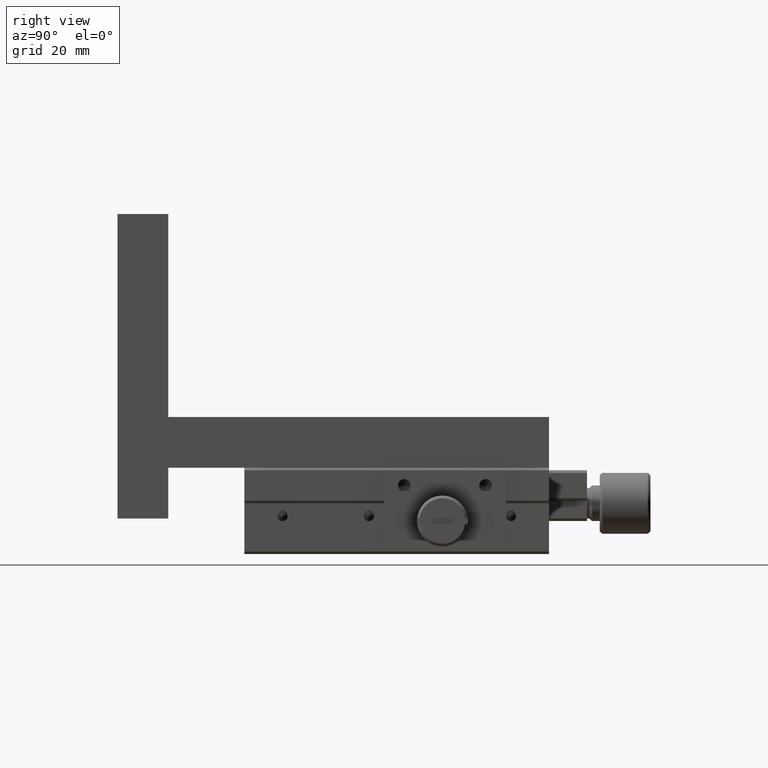
[diagram: clean part render]
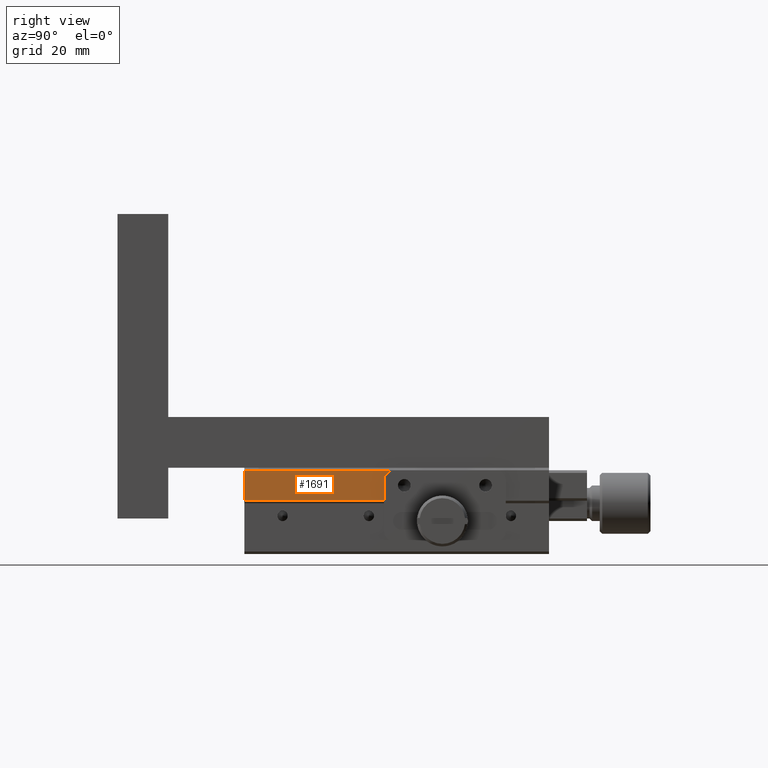
[diagram: same view with one face highlighted and labeled with its STEP entity id]
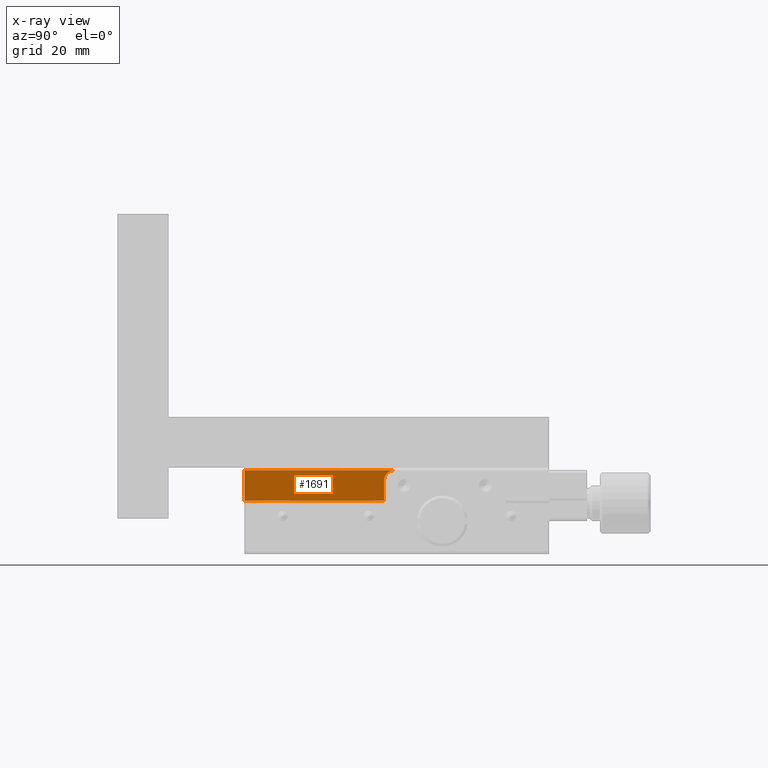
[diagram: x-ray of the same camera — body ghosted, the highlighted face saturated]
A machine part, right view. The second image highlights one B-rep face of the part: STEP entity #1691.
The next image is the same camera in x-ray: the body ghosted, the highlighted face saturated — about 0% of this face is hidden behind the body in this view.
In plain terms, the highlighted planar face has unit normal (-1, 0, 0).
Its self-contained STEP definition (entity closure, byte-faithful):
#13 = EDGE_CURVE ( 'NONE', #1312, #2173, #532, .T. ) ;
#23 = DIRECTION ( 'NONE',  ( -1.000000000000000000, 0.000000000000000000, 0.000000000000000000 ) ) ;
#272 = LINE ( 'NONE', #1961, #5075 ) ;
#382 = DIRECTION ( 'NONE',  ( -0.000000000000000000, -1.000000000000000000, 0.000000000000000000 ) ) ;
#526 = EDGE_CURVE ( 'NONE', #4373, #5697, #6319, .T. ) ;
#532 = CIRCLE ( 'NONE', #2661, 2.000000000000000000 ) ;
#622 = CARTESIAN_POINT ( 'NONE',  ( 30.00000000000000000, 54.50000000000000000, -0.5000000000000069944 ) ) ;
#924 = LINE ( 'NONE', #5399, #6091 ) ;
#962 = CARTESIAN_POINT ( 'NONE',  ( 30.00000000000000000, 54.50000000000000000, -2.500000000000000000 ) ) ;
#1052 = CARTESIAN_POINT ( 'NONE',  ( 30.00000000000000000, 84.99999999999998579, -0.5000000000000139888 ) ) ;
#1312 = VERTEX_POINT ( 'NONE', #622 ) ;
#1551 = ORIENTED_EDGE ( 'NONE', *, *, #4801, .F. ) ;
#1691 = ADVANCED_FACE ( 'NONE', ( #6208 ), #5513, .F. ) ;
#1716 = AXIS2_PLACEMENT_3D ( 'NONE', #2895, #23, #4498 ) ;
#1961 = CARTESIAN_POINT ( 'NONE',  ( 30.00000000000000000, 52.50000000000000000, -0.5000000000000139888 ) ) ;
#2173 = VERTEX_POINT ( 'NONE', #3974 ) ;
#2395 = ORIENTED_EDGE ( 'NONE', *, *, #7153, .F. ) ;
#2415 = EDGE_CURVE ( 'NONE', #4373, #1312, #3247, .T. ) ;
#2661 = AXIS2_PLACEMENT_3D ( 'NONE', #962, #7122, #6127 ) ;
#2895 = CARTESIAN_POINT ( 'NONE',  ( 30.00000000000000000, 84.99999999999998579, -0.5000000000000139888 ) ) ;
#3148 = VECTOR ( 'NONE', #4681, 1000.000000000000000 ) ;
#3247 = LINE ( 'NONE', #1052, #4322 ) ;
#3974 = CARTESIAN_POINT ( 'NONE',  ( 30.00000000000000000, 52.50000000000000000, -2.500000000000000000 ) ) ;
#4158 = CARTESIAN_POINT ( 'NONE',  ( 30.00000000000000000, 25.00000000000000000, 0.000000000000000000 ) ) ;
#4193 = ORIENTED_EDGE ( 'NONE', *, *, #13, .F. ) ;
#4322 = VECTOR ( 'NONE', #7178, 1000.000000000000000 ) ;
#4373 = VERTEX_POINT ( 'NONE', #7228 ) ;
#4498 = DIRECTION ( 'NONE',  ( 0.000000000000000000, 0.000000000000000000, 1.000000000000000000 ) ) ;
#4681 = DIRECTION ( 'NONE',  ( -0.000000000000000000, 0.000000000000000000, -1.000000000000000000 ) ) ;
#4801 = EDGE_CURVE ( 'NONE', #5497, #5697, #924, .T. ) ;
#5075 = VECTOR ( 'NONE', #5906, 1000.000000000000000 ) ;
#5399 = CARTESIAN_POINT ( 'NONE',  ( 30.00000000000000000, 84.99999999999998579, -6.500000000000030198 ) ) ;
#5497 = VERTEX_POINT ( 'NONE', #6702 ) ;
#5510 = EDGE_LOOP ( 'NONE', ( #4193, #5851, #6184, #1551, #2395 ) ) ;
#5513 = PLANE ( 'NONE',  #1716 ) ;
#5678 = CARTESIAN_POINT ( 'NONE',  ( 30.00000000000000000, 25.00000000000000000, -6.500000000000030198 ) ) ;
#5697 = VERTEX_POINT ( 'NONE', #5678 ) ;
#5851 = ORIENTED_EDGE ( 'NONE', *, *, #2415, .F. ) ;
#5906 = DIRECTION ( 'NONE',  ( -0.000000000000000000, -0.000000000000000000, -1.000000000000000000 ) ) ;
#6091 = VECTOR ( 'NONE', #382, 1000.000000000000000 ) ;
#6127 = DIRECTION ( 'NONE',  ( 0.000000000000000000, 0.000000000000000000, 1.000000000000000000 ) ) ;
#6184 = ORIENTED_EDGE ( 'NONE', *, *, #526, .T. ) ;
#6208 = FACE_OUTER_BOUND ( 'NONE', #5510, .T. ) ;
#6319 = LINE ( 'NONE', #4158, #3148 ) ;
#6702 = CARTESIAN_POINT ( 'NONE',  ( 30.00000000000000000, 52.50000000000000000, -6.500000000000030198 ) ) ;
#7122 = DIRECTION ( 'NONE',  ( 1.000000000000000000, -0.000000000000000000, -0.000000000000000000 ) ) ;
#7153 = EDGE_CURVE ( 'NONE', #2173, #5497, #272, .T. ) ;
#7178 = DIRECTION ( 'NONE',  ( 0.000000000000000000, 1.000000000000000000, -0.000000000000000000 ) ) ;
#7228 = CARTESIAN_POINT ( 'NONE',  ( 30.00000000000000000, 25.00000000000000000, -0.5000000000000139888 ) ) ;